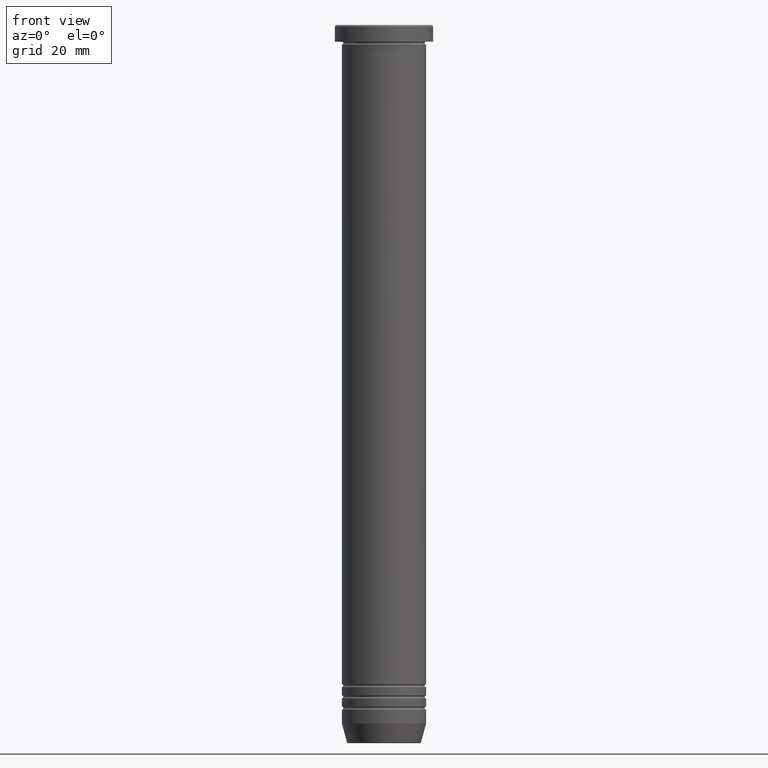
[diagram: clean part render]
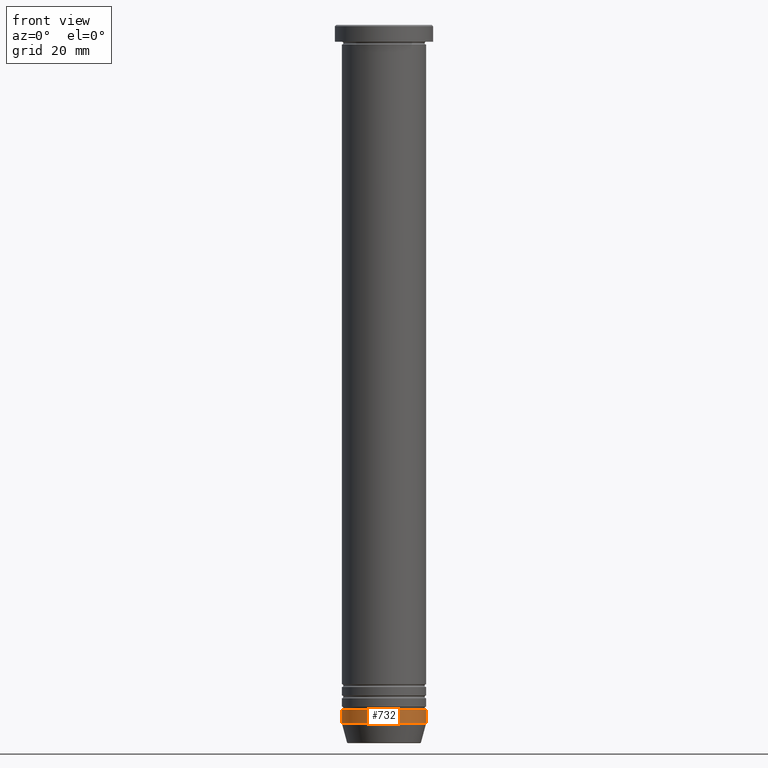
[diagram: same view with one face highlighted and labeled with its STEP entity id]
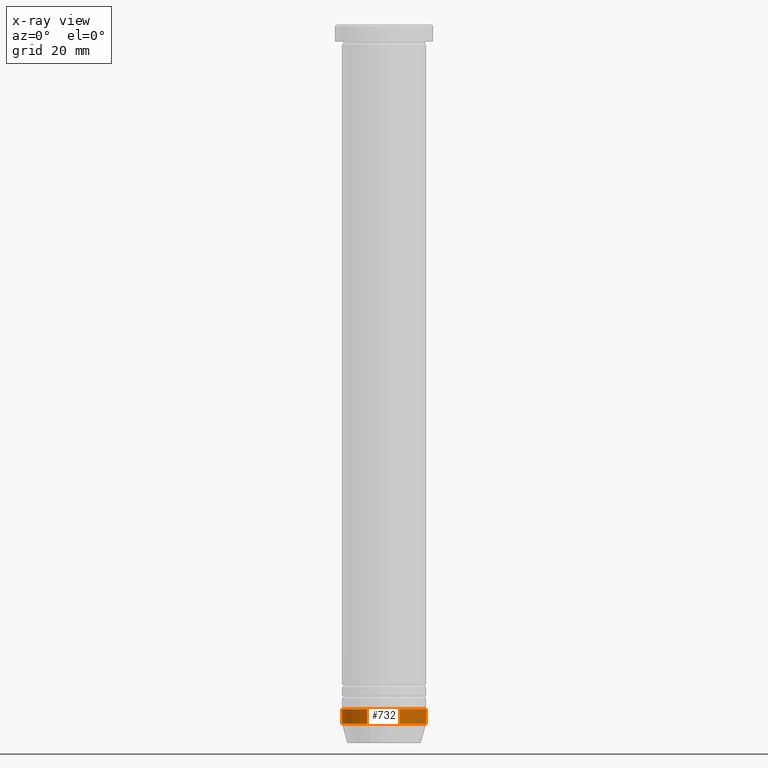
[diagram: x-ray of the same camera — body ghosted, the highlighted face saturated]
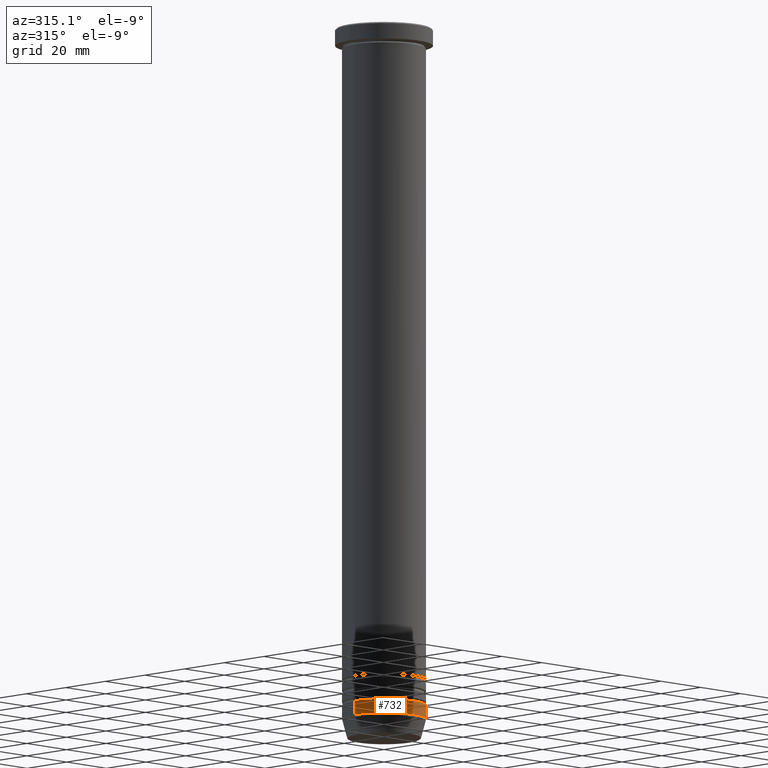
[diagram: same view with one face highlighted and labeled with its STEP entity id]
A machine part, front view. The second image highlights one B-rep face of the part: STEP entity #732.
The next image is the same camera in x-ray: the body ghosted, the highlighted face saturated — about 0% of this face is hidden behind the body in this view.
A second angle (auxiliary view) of the same face is appended — the face is thin or edge-on in the first view.
In plain terms, the highlighted cylindrical surface (partial cylindrical patch) has radius 15 mm, axis along (-0, -0, 1).
Its self-contained STEP definition (entity closure, byte-faithful):
#62 = DIRECTION ( 'NONE',  ( -0.000000000000000000, -0.000000000000000000, 1.000000000000000000 ) ) ;
#145 = CARTESIAN_POINT ( 'NONE',  ( 0.000000000000000000, 0.000000000000000000, 0.000000000000000000 ) ) ;
#175 = DIRECTION ( 'NONE',  ( 1.000000000000000000, 0.000000000000000000, 0.000000000000000000 ) ) ;
#199 = CARTESIAN_POINT ( 'NONE',  ( 14.99999999999999822, 0.000000000000000000, -244.0000000000000000 ) ) ;
#236 = ORIENTED_EDGE ( 'NONE', *, *, #850, .F. ) ;
#268 = DIRECTION ( 'NONE',  ( -0.000000000000000000, -0.000000000000000000, 1.000000000000000000 ) ) ;
#302 = EDGE_CURVE ( 'NONE', #546, #479, #953, .T. ) ;
#333 = DIRECTION ( 'NONE',  ( -0.000000000000000000, -0.000000000000000000, 1.000000000000000000 ) ) ;
#392 = DIRECTION ( 'NONE',  ( -0.000000000000000000, -0.000000000000000000, 1.000000000000000000 ) ) ;
#403 = AXIS2_PLACEMENT_3D ( 'NONE', #925, #392, #814 ) ;
#409 = EDGE_CURVE ( 'NONE', #1012, #766, #442, .T. ) ;
#428 = AXIS2_PLACEMENT_3D ( 'NONE', #1058, #268, #175 ) ;
#442 = LINE ( 'NONE', #881, #818 ) ;
#451 = EDGE_CURVE ( 'NONE', #1012, #546, #485, .T. ) ;
#479 = VERTEX_POINT ( 'NONE', #199 ) ;
#485 = CIRCLE ( 'NONE', #428, 14.99999999999999822 ) ;
#545 = DIRECTION ( 'NONE',  ( -0.000000000000000000, -0.000000000000000000, 1.000000000000000000 ) ) ;
#546 = VERTEX_POINT ( 'NONE', #558 ) ;
#556 = ORIENTED_EDGE ( 'NONE', *, *, #451, .T. ) ;
#558 = CARTESIAN_POINT ( 'NONE',  ( 14.99999999999999822, 0.000000000000000000, -249.0000000000000000 ) ) ;
#569 = CIRCLE ( 'NONE', #403, 14.99999999999999822 ) ;
#623 = CARTESIAN_POINT ( 'NONE',  ( -14.99999999999999822, 1.836970198721029589E-15, -249.0000000000000000 ) ) ;
#639 = CARTESIAN_POINT ( 'NONE',  ( -14.99999999999999822, 1.836970198721029589E-15, -244.0000000000000000 ) ) ;
#686 = CYLINDRICAL_SURFACE ( 'NONE', #968, 14.99999999999999822 ) ;
#732 = ADVANCED_FACE ( 'NONE', ( #851 ), #686, .T. ) ;
#766 = VERTEX_POINT ( 'NONE', #639 ) ;
#808 = ORIENTED_EDGE ( 'NONE', *, *, #409, .F. ) ;
#814 = DIRECTION ( 'NONE',  ( 1.000000000000000000, 0.000000000000000000, 0.000000000000000000 ) ) ;
#818 = VECTOR ( 'NONE', #545, 1000.000000000000000 ) ;
#850 = EDGE_CURVE ( 'NONE', #766, #479, #569, .T. ) ;
#851 = FACE_OUTER_BOUND ( 'NONE', #1048, .T. ) ;
#868 = CARTESIAN_POINT ( 'NONE',  ( 14.99999999999999822, 0.000000000000000000, 0.000000000000000000 ) ) ;
#881 = CARTESIAN_POINT ( 'NONE',  ( -14.99999999999999822, 1.836970198721029589E-15, 0.000000000000000000 ) ) ;
#925 = CARTESIAN_POINT ( 'NONE',  ( 0.000000000000000000, 0.000000000000000000, -244.0000000000000000 ) ) ;
#953 = LINE ( 'NONE', #868, #1059 ) ;
#968 = AXIS2_PLACEMENT_3D ( 'NONE', #145, #62, #975 ) ;
#975 = DIRECTION ( 'NONE',  ( 1.000000000000000000, 0.000000000000000000, 0.000000000000000000 ) ) ;
#1012 = VERTEX_POINT ( 'NONE', #623 ) ;
#1048 = EDGE_LOOP ( 'NONE', ( #808, #556, #1073, #236 ) ) ;
#1058 = CARTESIAN_POINT ( 'NONE',  ( 0.000000000000000000, 0.000000000000000000, -249.0000000000000000 ) ) ;
#1059 = VECTOR ( 'NONE', #333, 1000.000000000000000 ) ;
#1073 = ORIENTED_EDGE ( 'NONE', *, *, #302, .T. ) ;